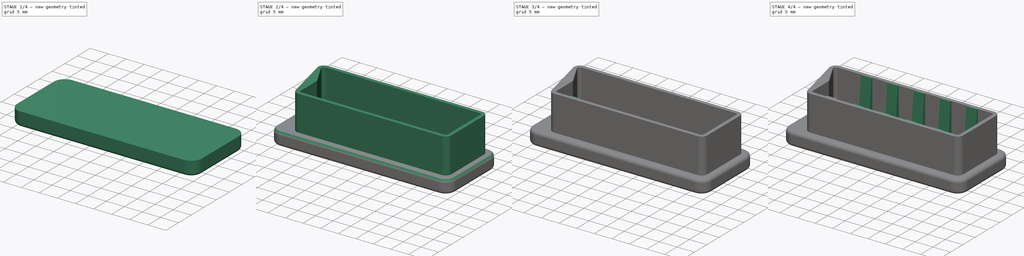
[diagram: build sequence overview — one tinted view per stage of 4, left to right]
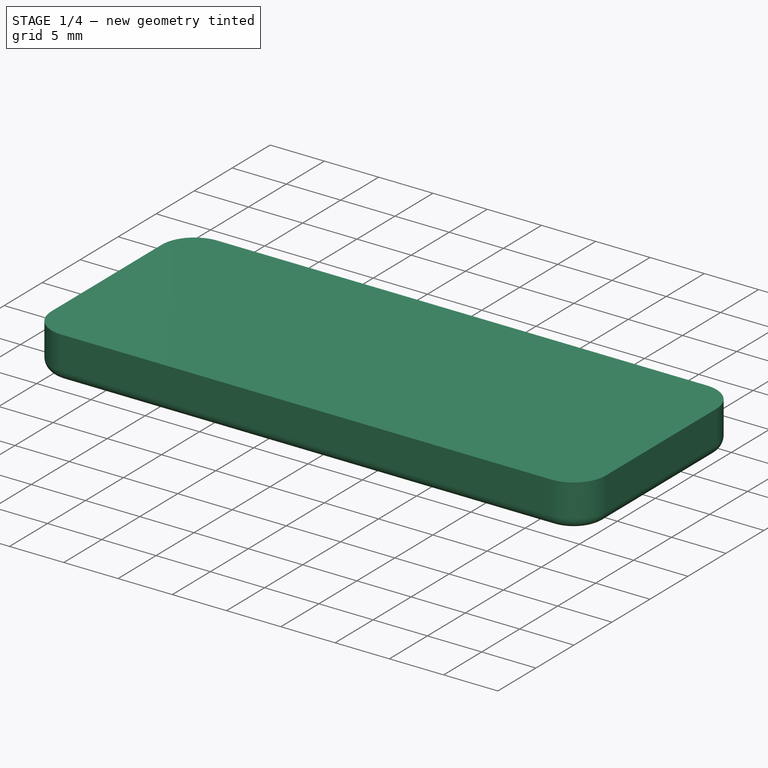
[diagram: stage 1 of 4 — iso view after this stage's code; geometry added in this stage tinted green]
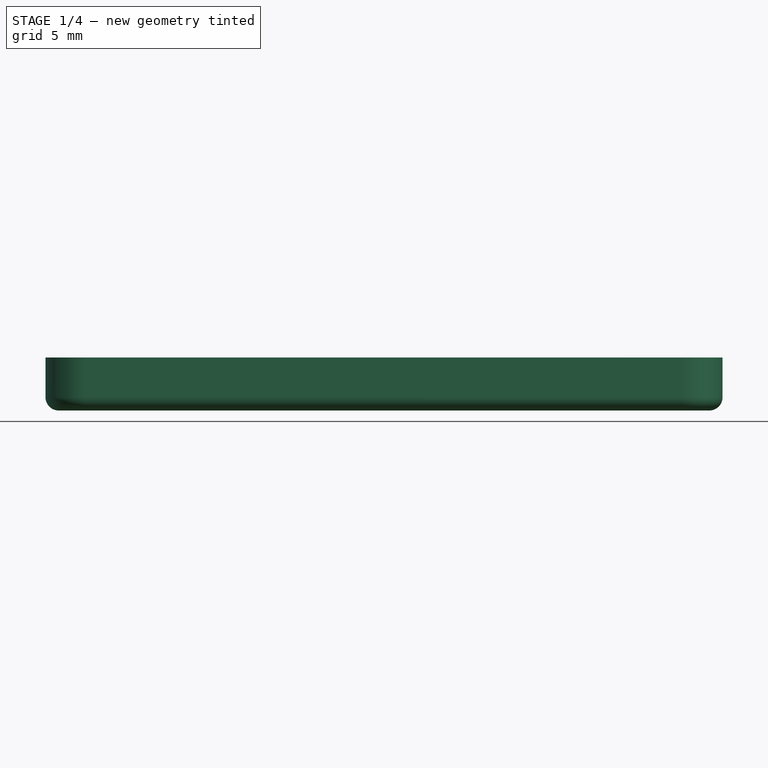
[diagram: stage 1 of 4 — front view after this stage's code; geometry added in this stage tinted green]
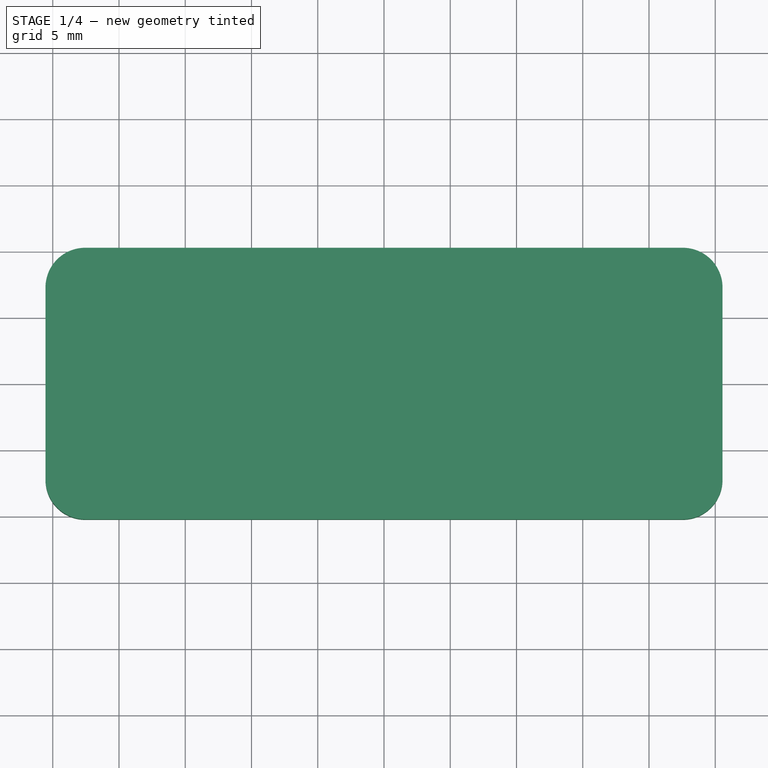
[diagram: stage 1 of 4 — top view after this stage's code; geometry added in this stage tinted green]
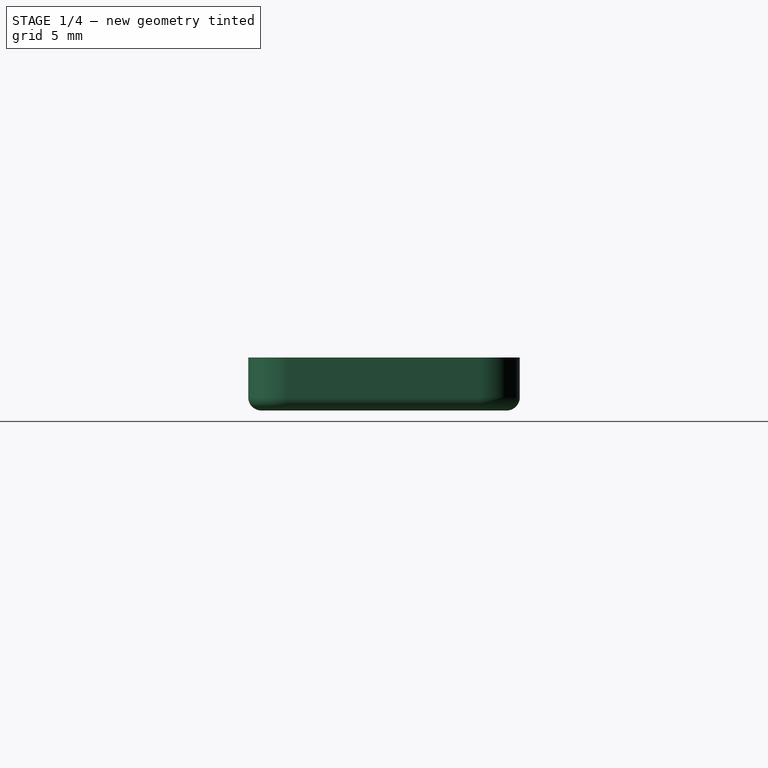
[diagram: stage 1 of 4 — right view after this stage's code; geometry added in this stage tinted green]
FCSTD DOCUMENT  (FreeCAD 0.20R29177 +426 (Git))
Label: Scart_Cover
License: All rights reserved
LicenseURL: http://en.wikipedia.org/wiki/All_rights_reserved
objects: Sketcher::SketchObject×5, PartDesign::Pad×4, PartDesign::Fillet×4, PartDesign::LinearPattern×2, PartDesign::Pocket×1, PartDesign::Body×1
note: 26 computed .brp shape members not serialized (recipe doc carries the construction recipe); baked Part::Feature solids carry a one-line shape summary decoded from their .brp

FEATURE [Sketcher::SketchObject] Sketch
  FullyConstrained = true
  MapMode = 5
  Support = -> [XY_Plane]
  sketch-geometry (4):
    g0: LineSegment StartX=-25.55 StartY=10.25 StartZ=0 EndX=25.55 EndY=10.25 EndZ=0
    g1: LineSegment StartX=25.55 StartY=10.25 StartZ=0 EndX=25.55 EndY=-10.25 EndZ=0
    g2: LineSegment StartX=25.55 StartY=-10.25 StartZ=0 EndX=-25.55 EndY=-10.25 EndZ=0
    g3: LineSegment StartX=-25.55 StartY=-10.25 StartZ=0 EndX=-25.55 EndY=10.25 EndZ=0
  constraints (11):
    c: Coincident(g0,g1)
    c: Coincident(g1,g2)
    c: Coincident(g2,g3)
    c: Coincident(g3,g0)
    c: Horizontal(g0)
    c: Horizontal(g2)
    c: Vertical(g1)
    c: Vertical(g3)
    c: Symmetric(g2,g0,g-1)
    c: DistanceY(g1,g0) = 20.5
    c: DistanceX(g0,g0) = 51.1
FEATURE [PartDesign::Pad] Pad
  Direction = (0,0,1)
  Length = 4
  Length2 = 10
  Profile = -> Sketch
  ReferenceAxis = -> Sketch [N_Axis]
  Type = 0
FEATURE [PartDesign::Fillet] Fillet
  Base = -> Pad [Edge2,Edge5,Edge8,Edge1]
  BaseFeature = -> Pad
  Radius = 3
  SupportTransform = false
  UseAllEdges = false
FEATURE [PartDesign::Fillet] Fillet001
  Base = -> Fillet [Edge11]
  BaseFeature = -> Fillet
  Radius = 1
  SupportTransform = false
  UseAllEdges = false
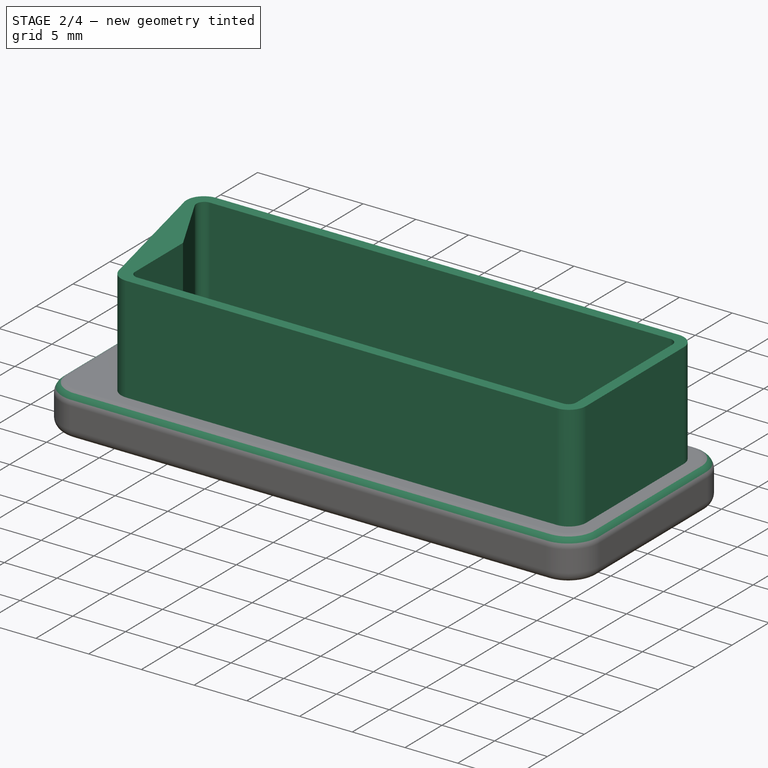
[diagram: stage 2 of 4 — iso view after this stage's code; geometry added in this stage tinted green]
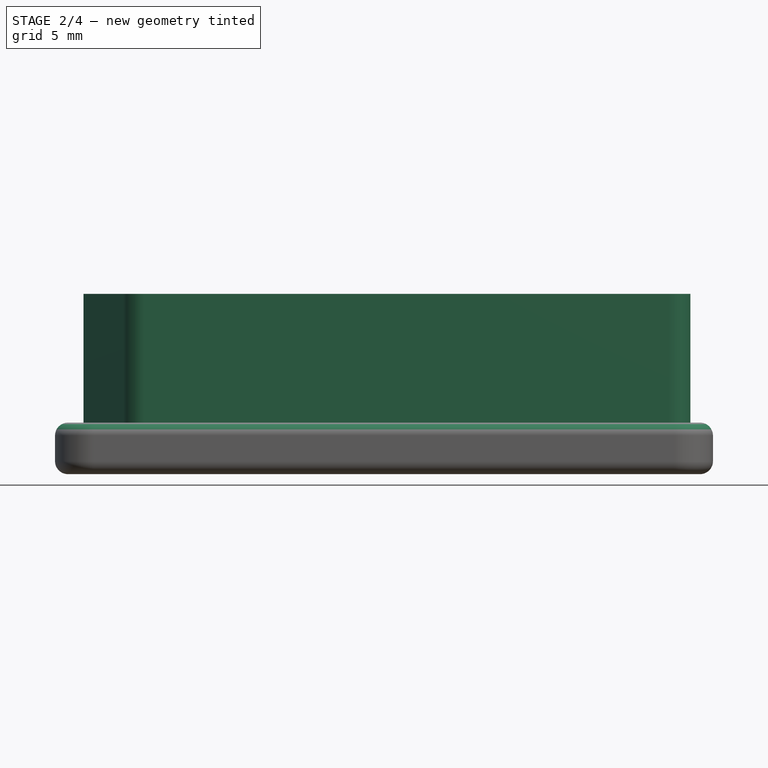
[diagram: stage 2 of 4 — front view after this stage's code; geometry added in this stage tinted green]
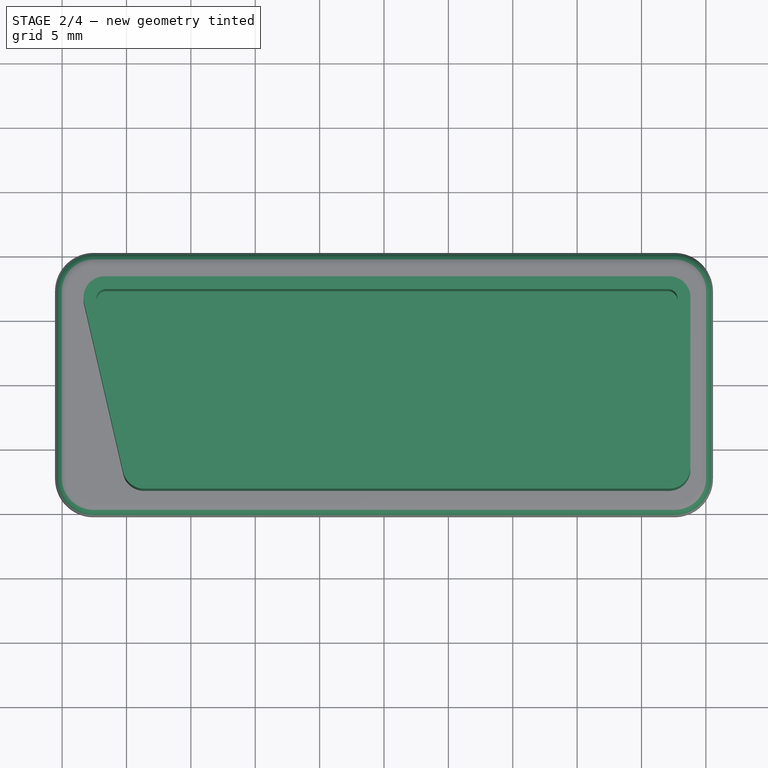
[diagram: stage 2 of 4 — top view after this stage's code; geometry added in this stage tinted green]
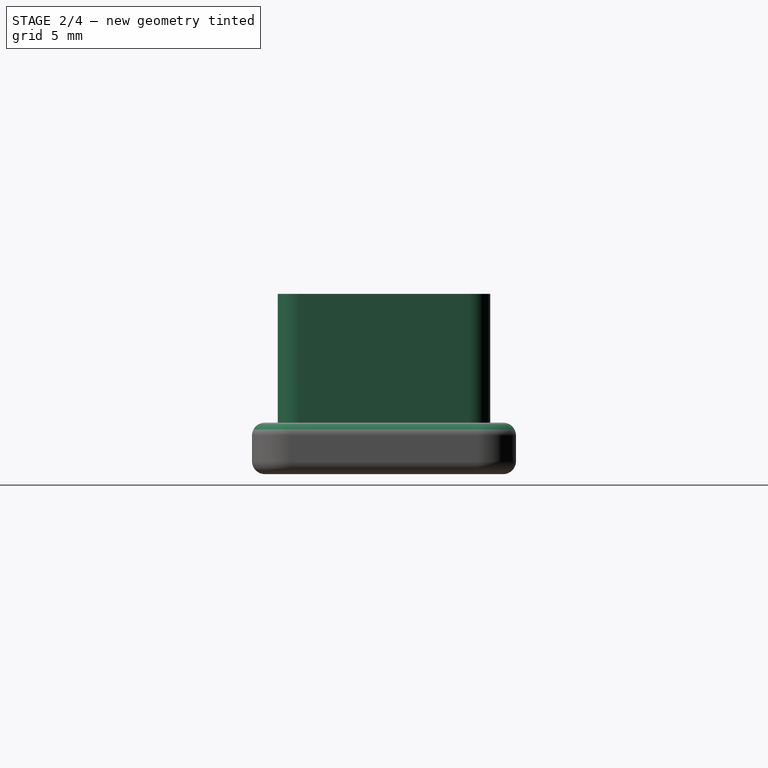
[diagram: stage 2 of 4 — right view after this stage's code; geometry added in this stage tinted green]
FEATURE [PartDesign::Fillet] Fillet002
  Base = -> Fillet001 [Edge16]
  BaseFeature = -> Fillet001
  Radius = 1
  SupportTransform = false
  UseAllEdges = false
FEATURE [Sketcher::SketchObject] Sketch001
  ExternalGeometry = -> [Fillet002]
  FullyConstrained = true
  MapMode = 5
  Placement = pos=(0,0,4) rot=(0,0,1;0rad)
  Support = -> [Fillet002]
  sketch-geometry (8):
    g0: LineSegment StartX=22.15 StartY=8.25 StartZ=0 EndX=-21.6923 EndY=8.25 EndZ=0
    g1: ArcOfCircle CenterX=-21.6923 CenterY=6.6 CenterZ=0 NormalX=0 NormalY=0 NormalZ=1 AngleXU=0 Radius=1.65 StartAngle=1.5708 EndAngle=3.36849
    g2: LineSegment StartX=-23.3 StartY=6.22883 StartZ=0 EndX=-20.2525 EndY=-6.97117 EndZ=0
    g3: ArcOfCircle CenterX=22.15 CenterY=-6.6 CenterZ=0 NormalX=0 NormalY=0 NormalZ=1 AngleXU=0 Radius=1.65 StartAngle=4.71239 EndAngle=6.28319
    g4: LineSegment StartX=23.8 StartY=-6.6 StartZ=0 EndX=23.8 EndY=6.6 EndZ=0
    g5: ArcOfCircle CenterX=22.15 CenterY=6.6 CenterZ=0 NormalX=0 NormalY=0 NormalZ=1 AngleXU=0 Radius=1.65 StartAngle=2e-16 EndAngle=1.5708
    g6: LineSegment StartX=22.15 StartY=-8.25 StartZ=0 EndX=-18.6448 EndY=-8.25 EndZ=0
    g7: ArcOfCircle CenterX=-18.6448 CenterY=-6.6 CenterZ=0 NormalX=0 NormalY=0 NormalZ=1 AngleXU=0 Radius=1.65 StartAngle=3.36849 EndAngle=4.71239
  constraints (24):
    c: Horizontal(g0)
    c: Coincident(g1,g2)
    c: Coincident(g3,g4)
    c: Vertical(g4)
    c: Tangent(g4,g5) = -1.5708
    c: Coincident(g5,g0)
    c: Diameter(g3) = 3.3
    c: Diameter(g5) = 3.3
    c: DistanceX(g1,g-1) = 23.3
    c: DistanceX(g-1,g4) = 23.8
    c: DistanceY(g-1,g0) = 8.25
    c: Angle(g2) = -1.3439
    c: Diameter(g1) = 3.3
    c: Tangent(g1,g0) = -1.5708
    c: Tangent(g0,g5,g0) = -1.5708
    c: Tangent(g2,g1,g1) = -1.5708
    c: Tangent(g4,g3,g3) = -1.5708
    c: Tangent(g3,g6) = 1.5708
    c: Tangent(g6,g7) = 1.5708
    c: Coincident(g7,g2)
    c: Horizontal(g6)
    c: Tangent(g2,g7,g2) = -1.5708
    c: DistanceY(g3,g-1) = 8.25
    c: Diameter(g7) = 3.3
FEATURE [PartDesign::Pad] Pad001
  BaseFeature = -> Fillet002
  Direction = (0,0,1)
  Length = 10
  Length2 = 10
  Profile = -> Sketch001
  ReferenceAxis = -> Sketch001 [N_Axis]
  Type = 0
FEATURE [Sketcher::SketchObject] Sketch002
  ExternalGeometry = -> [Pad001]
  FullyConstrained = true
  MapMode = 5
  Placement = pos=(0,0,14) rot=(0,0,1;0rad)
  Support = -> [Pad001]
  sketch-geometry (9):
    g0: LineSegment StartX=22.05 StartY=7.25 StartZ=0 EndX=-21.5907 EndY=7.25 EndZ=0
    g1: ArcOfCircle CenterX=-21.5907 CenterY=6.5 CenterZ=0 NormalX=0 NormalY=0 NormalZ=1 AngleXU=0 Radius=0.75 StartAngle=1.5708 EndAngle=3.62156
    g2: LineSegment StartX=-22.2559 StartY=6.15369 StartZ=0 EndX=-19.0525 EndY=0 EndZ=0
    g3: LineSegment StartX=-19.0525 StartY=0 StartZ=0 EndX=-19.0525 EndY=-6.5 EndZ=0
    g4: ArcOfCircle CenterX=-18.3025 CenterY=-6.5 CenterZ=0 NormalX=0 NormalY=0 NormalZ=1 AngleXU=0 Radius=0.75 StartAngle=3.14159 EndAngle=4.71239
    g5: LineSegment StartX=-18.3025 StartY=-7.25 StartZ=0 EndX=22.05 EndY=-7.25 EndZ=0
    g6: ArcOfCircle CenterX=22.05 CenterY=-6.5 CenterZ=0 NormalX=0 NormalY=0 NormalZ=1 AngleXU=0 Radius=0.75 StartAngle=4.71239 EndAngle=6.28319
    g7: LineSegment StartX=22.8 StartY=-6.5 StartZ=0 EndX=22.8 EndY=6.5 EndZ=0
    g8: ArcOfCircle CenterX=22.05 CenterY=6.5 CenterZ=0 NormalX=0 NormalY=0 NormalZ=1 AngleXU=0 Radius=0.75 StartAngle=3e-16 EndAngle=1.5708
  constraints (26):
    c: Horizontal(g0)
    c: Tangent(g0,g1) = -1.5708
    c: Coincident(g1,g2)
    c: PointOnObject(g2,g-1)
    c: Coincident(g2,g3)
    c: Vertical(g3)
    c: Tangent(g3,g4) = -1.5708
    c: Coincident(g4,g5)
    c: Horizontal(g5)
    c: Tangent(g5,g6) = -1.5708
    c: Coincident(g6,g7)
    c: Vertical(g7)
    c: Tangent(g7,g8) = -1.5708
    c: DistanceY(g0,g-6) = 1
    c: DistanceX(g6,g-8) = 1
    c: DistanceY(g-10,g4) = 1
    c: Diameter(g8) = 1.5
    c: Diameter(g6) = 1.5
    c: DistanceX(g-10,g3) = 1.2
    c: Diameter(g4) = 1.5
    c: Diameter(g1) = 1.5
    c: Tangent(g4,g5) = -1.5708
    c: Tangent(g6,g7) = -1.5708
    c: Tangent(g1,g2) = -1.5708
    c: Tangent(g8,g0) = -1.5708
    c: Angle(g2) = -1.09083
FEATURE [PartDesign::Pocket] Pocket
  BaseFeature = -> Pad001
  Direction = (0,0,-1)
  Length = 9
  Length2 = 5
  Profile = -> Sketch002
  ReferenceAxis = -> Sketch002 [N_Axis]
  Type = 0
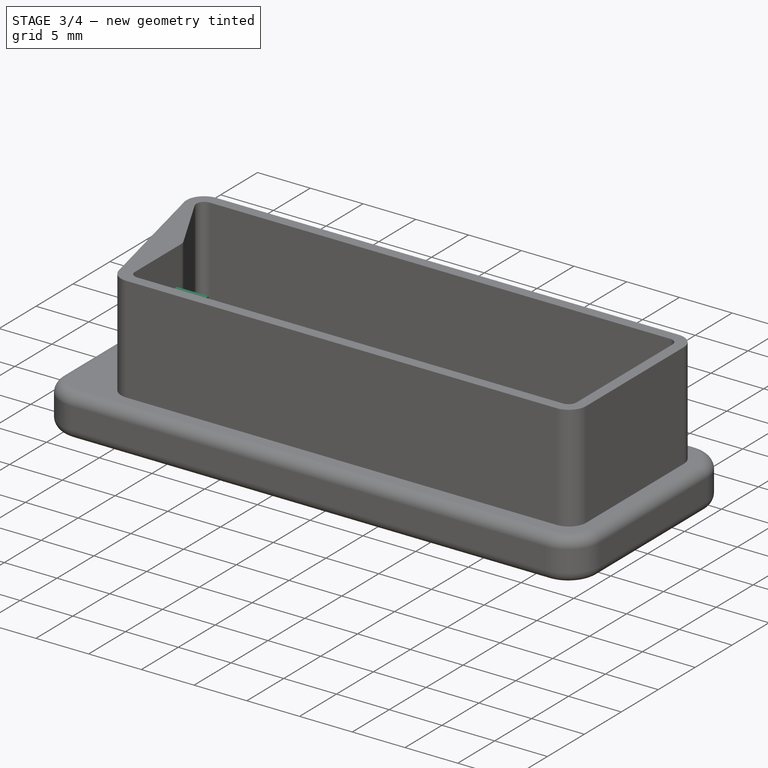
[diagram: stage 3 of 4 — iso view after this stage's code; geometry added in this stage tinted green]
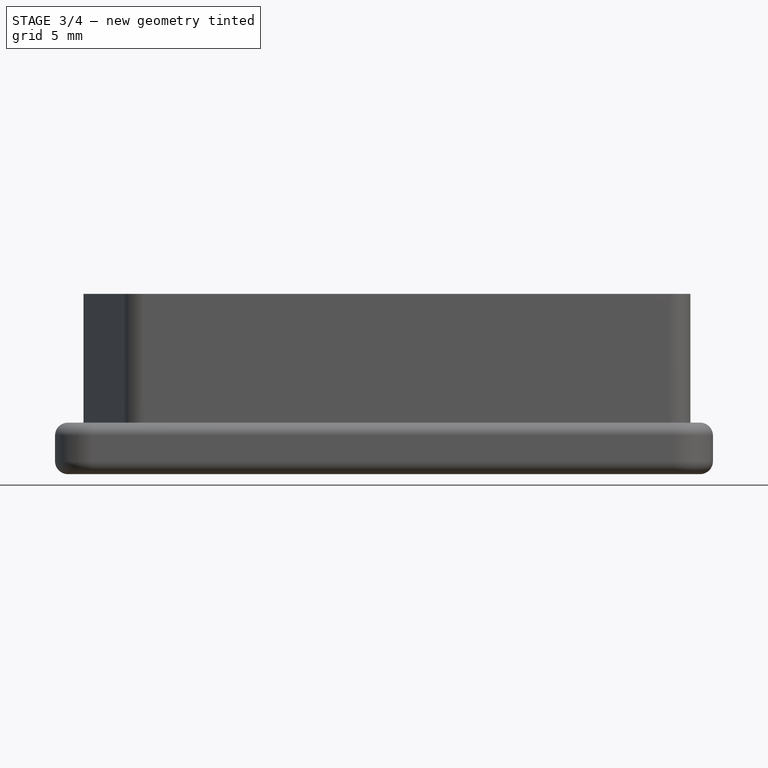
[diagram: stage 3 of 4 — front view after this stage's code; geometry added in this stage tinted green]
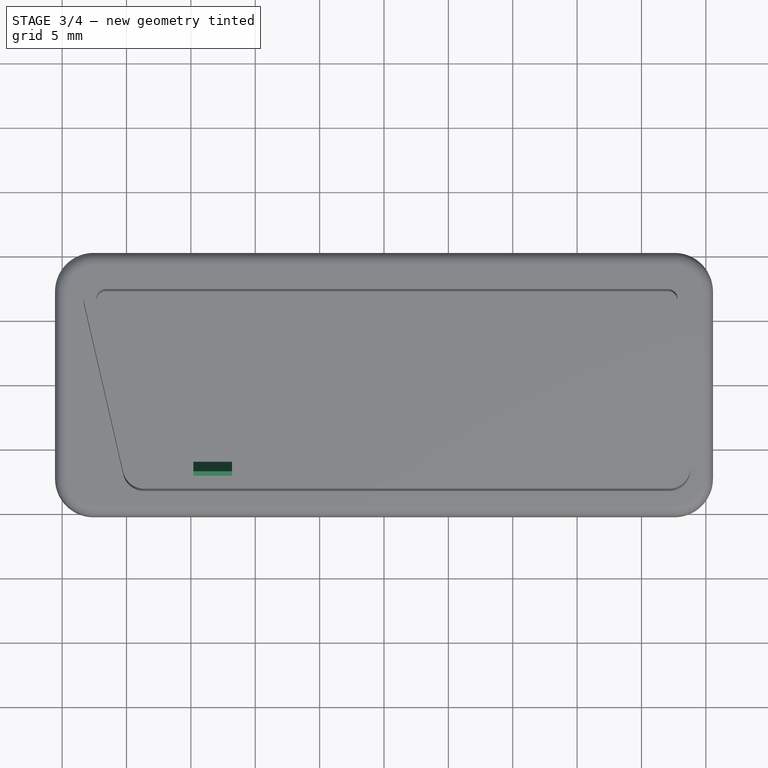
[diagram: stage 3 of 4 — top view after this stage's code; geometry added in this stage tinted green]
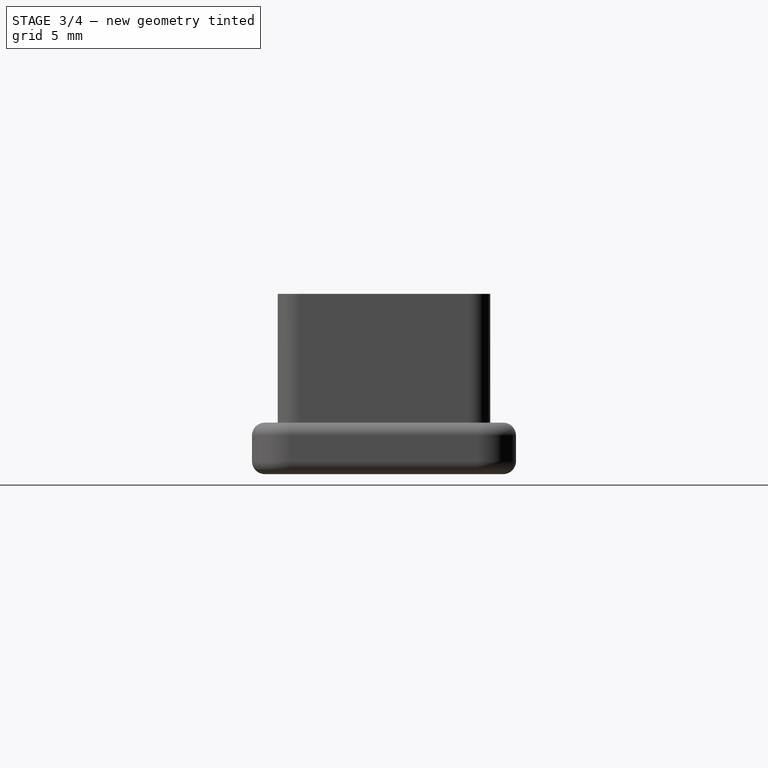
[diagram: stage 3 of 4 — right view after this stage's code; geometry added in this stage tinted green]
FEATURE [PartDesign::Fillet] Fillet003
  Base = -> Pocket [Edge95]
  BaseFeature = -> Pocket
  Radius = 1
  SupportTransform = false
  UseAllEdges = false
FEATURE [Sketcher::SketchObject] Sketch003
  ExternalGeometry = -> [Fillet003]
  FullyConstrained = true
  MapMode = 5
  Placement = pos=(0,0,5) rot=(0,0,1;0rad)
  Support = -> [Fillet003]
  sketch-geometry (4):
    g0: LineSegment StartX=-14.8025 StartY=-7.25 StartZ=0 EndX=-11.8025 EndY=-7.25 EndZ=0
    g1: LineSegment StartX=-11.8025 StartY=-7.25 StartZ=0 EndX=-11.8025 EndY=-6 EndZ=0
    g2: LineSegment StartX=-11.8025 StartY=-6 StartZ=0 EndX=-14.8025 EndY=-6 EndZ=0
    g3: LineSegment StartX=-14.8025 StartY=-6 StartZ=0 EndX=-14.8025 EndY=-7.25 EndZ=0
  constraints (12):
    c: Coincident(g0,g1)
    c: Coincident(g1,g2)
    c: Coincident(g2,g3)
    c: Coincident(g3,g0)
    c: Horizontal(g0)
    c: Horizontal(g2)
    c: Vertical(g1)
    c: Vertical(g3)
    c: PointOnObject(g0,g-3)
    c: DistanceX(g2,g1) = 3
    c: DistanceY(g0,g1) = 1.25
    c: DistanceX(g-3,g0) = 3.5
FEATURE [PartDesign::Pad] Pad002
  BaseFeature = -> Fillet003
  Direction = (0,-0.1,1)
  Length = 9
  Length2 = 10
  Profile = -> Sketch003
  ReferenceAxis = -> Sketch003 [N_Axis]
  Type = 0
  UseCustomVector = true
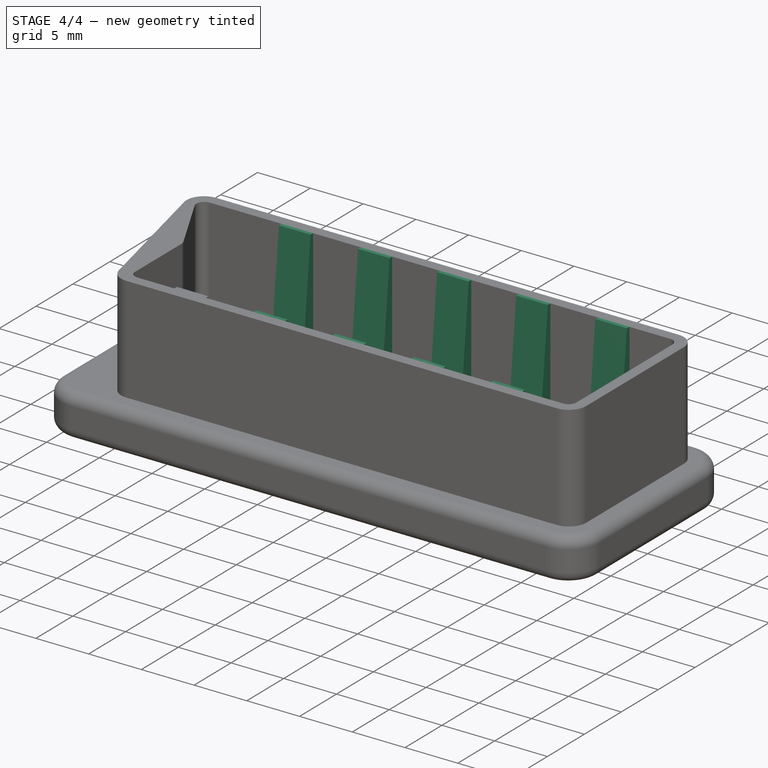
[diagram: stage 4 of 4 — iso view after this stage's code; geometry added in this stage tinted green]
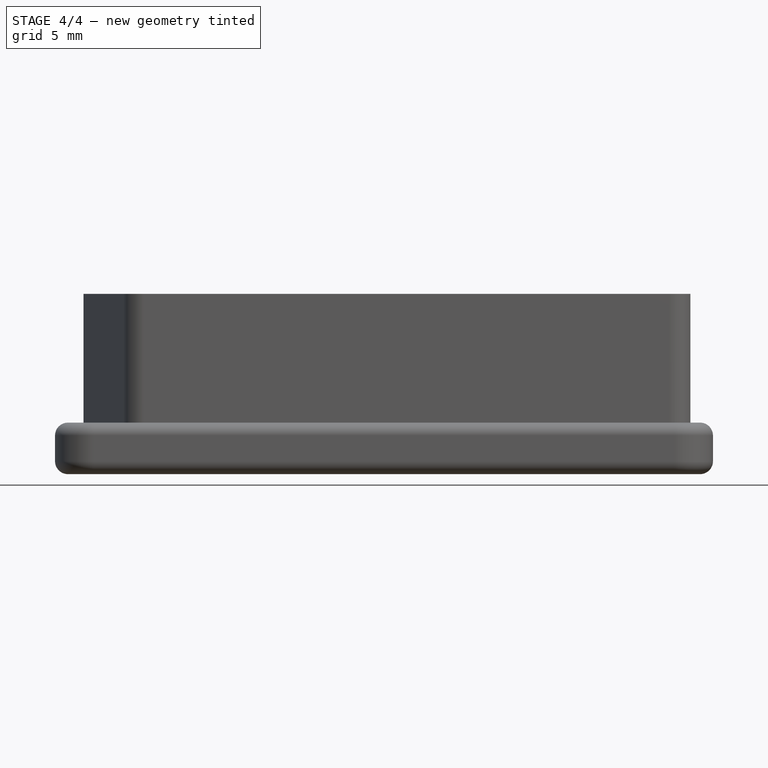
[diagram: stage 4 of 4 — front view after this stage's code; geometry added in this stage tinted green]
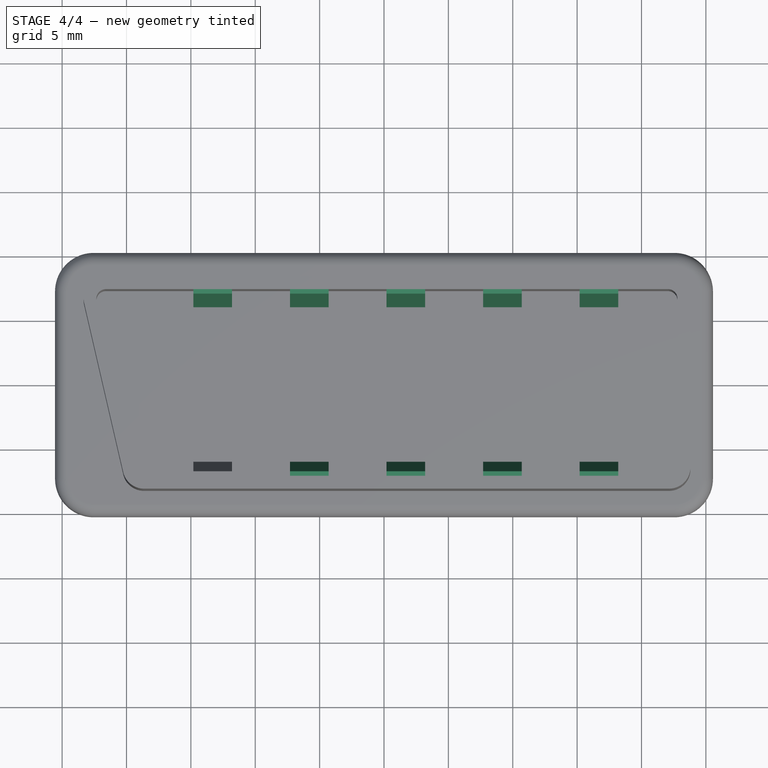
[diagram: stage 4 of 4 — top view after this stage's code; geometry added in this stage tinted green]
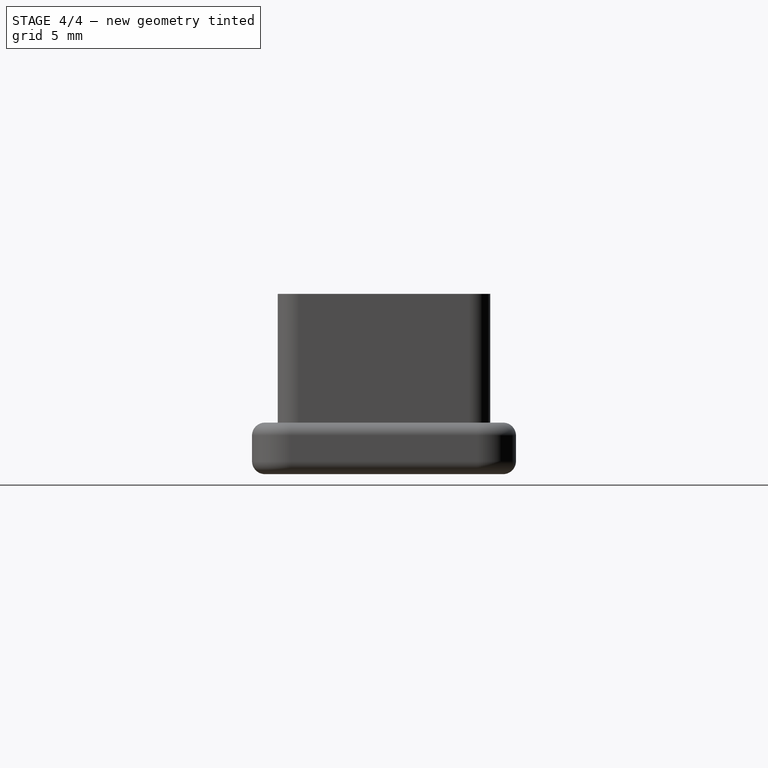
[diagram: stage 4 of 4 — right view after this stage's code; geometry added in this stage tinted green]
FEATURE [PartDesign::LinearPattern] LinearPattern
  BaseFeature = -> Pad002
  Direction = -> Sketch003 [H_Axis]
  Length = 30
  Occurrences = 5
  Originals = -> [Pad002]
FEATURE [Sketcher::SketchObject] Sketch004
  ExternalGeometry = -> [LinearPattern]
  FullyConstrained = true
  MapMode = 5
  Placement = pos=(0,0,5) rot=(0,0,1;0rad)
  Support = -> [LinearPattern]
  sketch-geometry (4):
    g0: LineSegment StartX=-14.8025 StartY=7.25 StartZ=0 EndX=-11.8025 EndY=7.25 EndZ=0
    g1: LineSegment StartX=-11.8025 StartY=7.25 StartZ=0 EndX=-11.8025 EndY=6 EndZ=0
    g2: LineSegment StartX=-11.8025 StartY=6 StartZ=0 EndX=-14.8025 EndY=6 EndZ=0
    g3: LineSegment StartX=-14.8025 StartY=6 StartZ=0 EndX=-14.8025 EndY=7.25 EndZ=0
  constraints (12):
    c: Coincident(g0,g1)
    c: Coincident(g1,g2)
    c: Coincident(g2,g3)
    c: Coincident(g3,g0)
    c: Horizontal(g0)
    c: Horizontal(g2)
    c: Vertical(g1)
    c: Vertical(g3)
    c: PointOnObject(g0,g-3)
    c: DistanceX(g2,g1) = 3
    c: DistanceY(g1,g0) = 1.25
    c: Vertical(g-4,g2)
FEATURE [PartDesign::Pad] Pad003
  BaseFeature = -> LinearPattern
  Direction = (0,0.1,1)
  Length = 9
  Length2 = 10
  Profile = -> Sketch004
  ReferenceAxis = -> Sketch004 [N_Axis]
  Type = 0
  UseCustomVector = true
FEATURE [PartDesign::LinearPattern] LinearPattern001
  BaseFeature = -> Pad003
  Direction = -> Sketch004 [H_Axis]
  Length = 30
  Occurrences = 5
  Originals = -> [Pad003]
FEATURE [PartDesign::Body] Body
  Group = -> [Sketch,Pad,Fillet,Fillet001,Fillet002,Sketch001,Pad001,Sketch002,Pocket,Fillet003,Sketch003,Pad002,LinearPattern,Sketch004,Pad003,LinearPattern001]
  Origin = -> Origin
  Tip = -> LinearPattern001
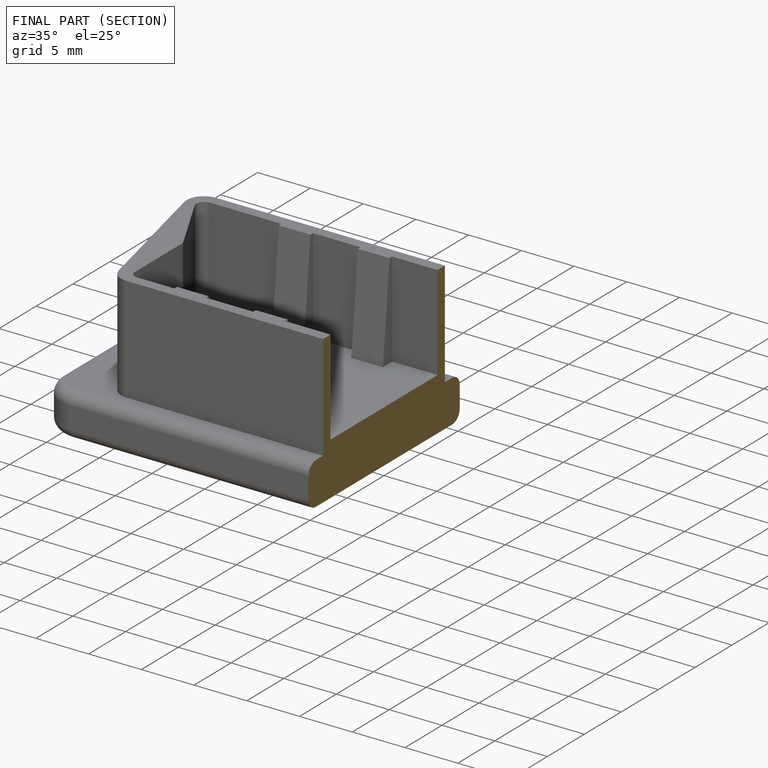
[diagram: finished part — half-section view (interior)]
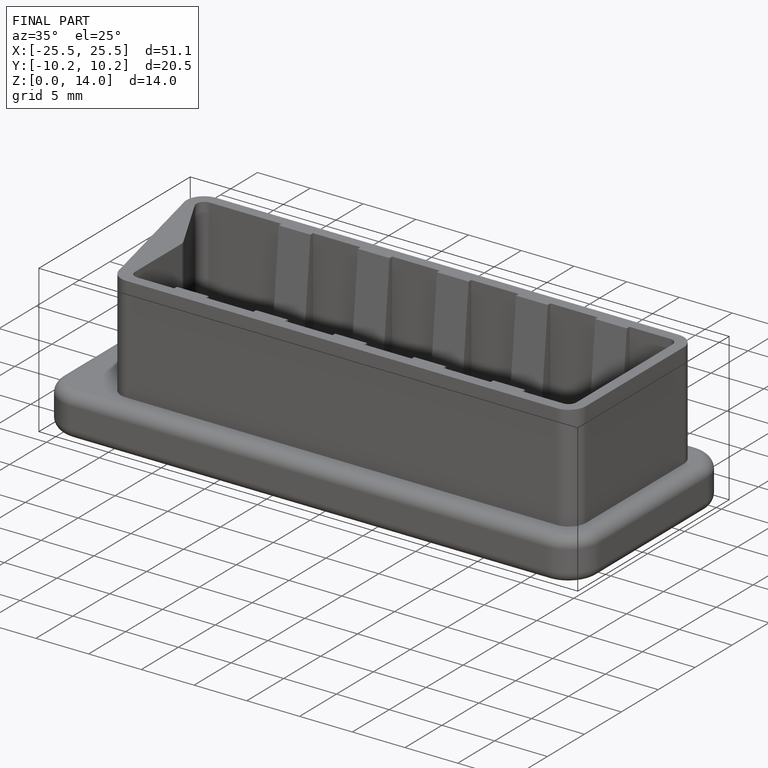
[diagram: finished part — iso view with bounding-box wireframe]
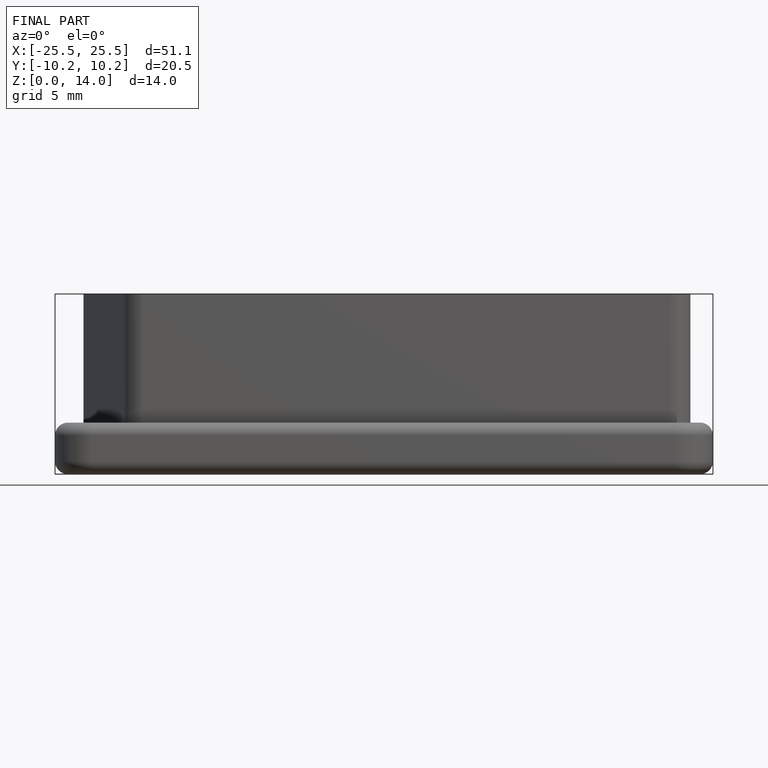
[diagram: finished part — front view with bounding-box wireframe]
